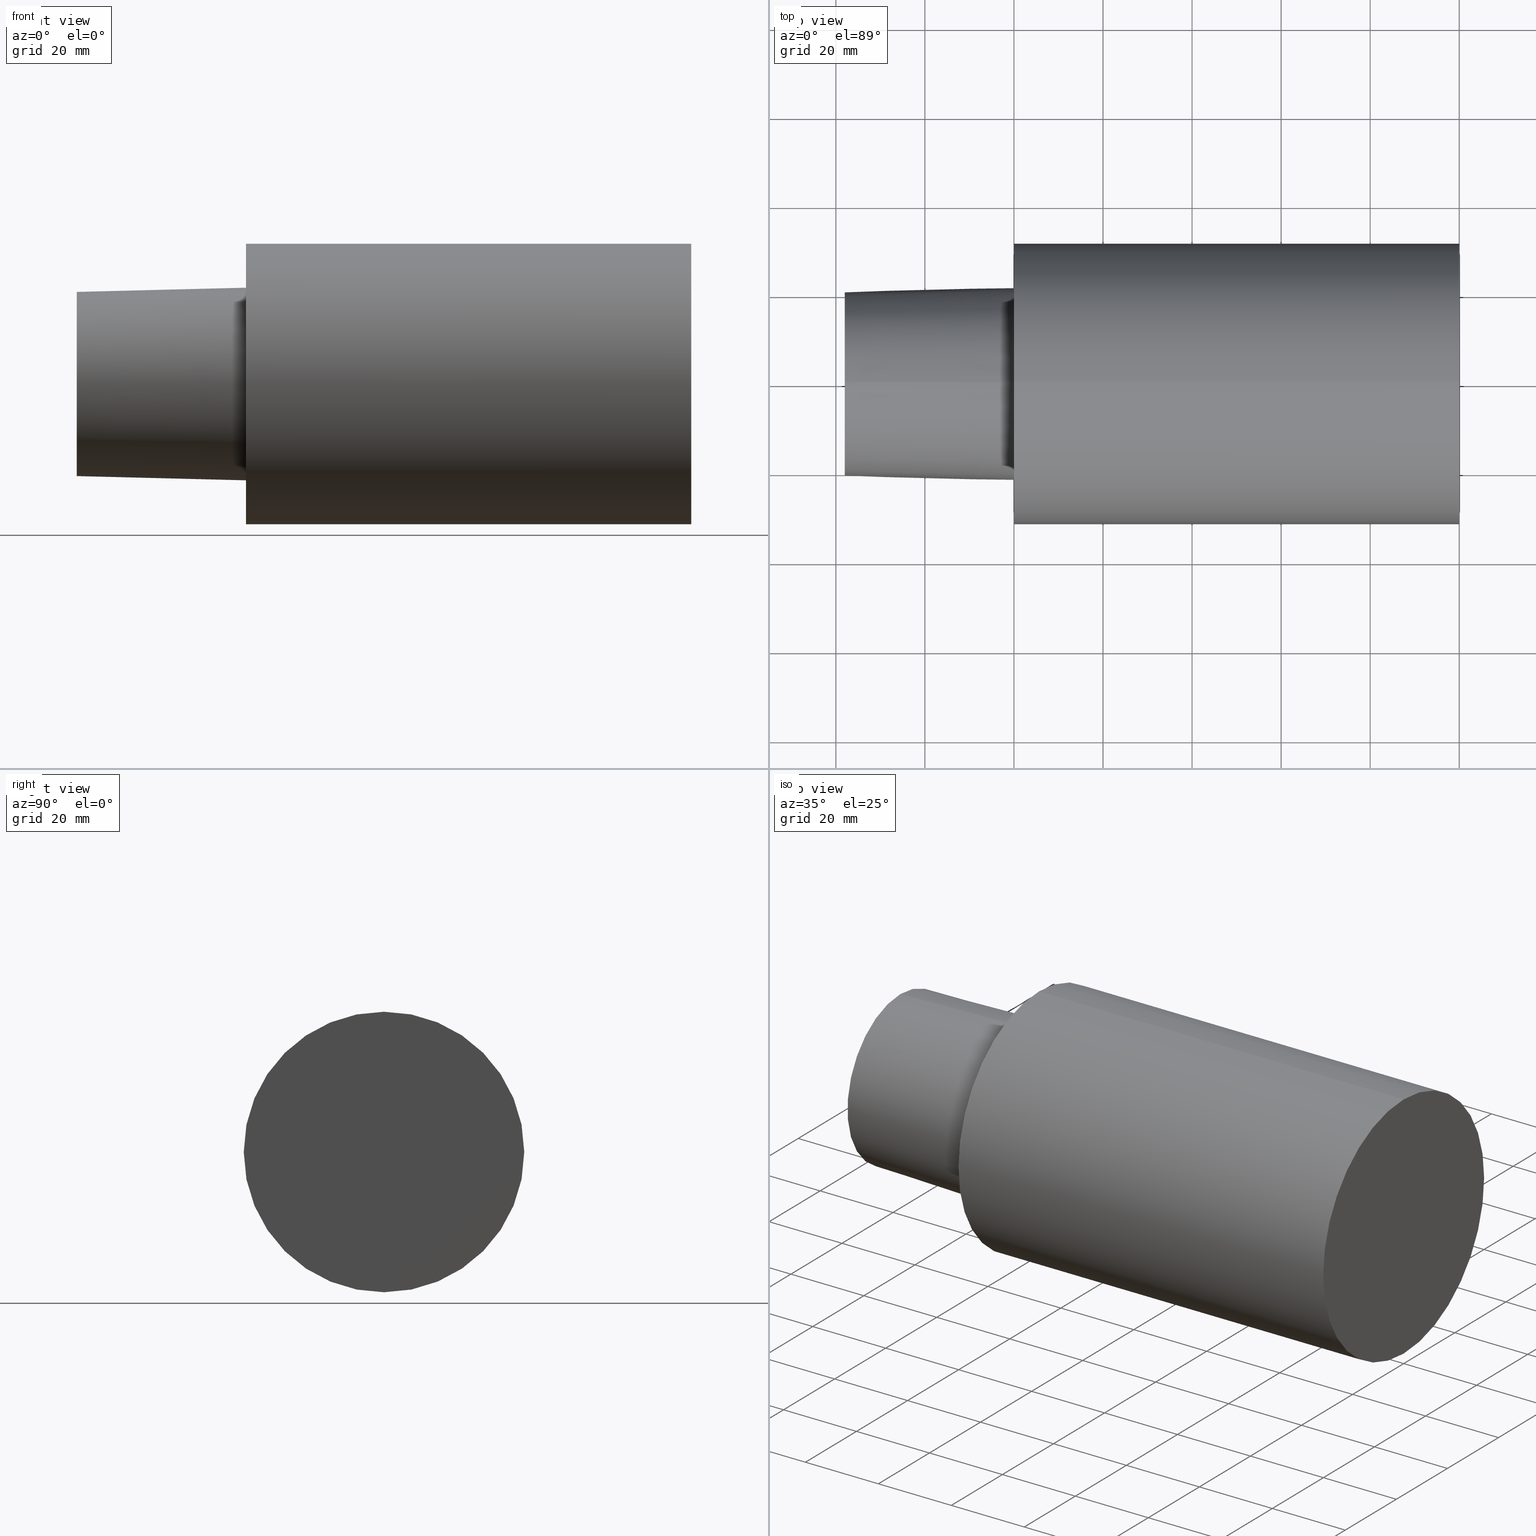
[diagram: canonical four-view strip — front | top / right | iso, engineering-drawing reading convention]
A machine part, canonical four-view strip (front | top / right | iso — engineering-drawing reading convention). The complete STEP part file that produces these views, byte-faithful:
ISO-10303-21;
HEADER;
FILE_DESCRIPTION (( 'STEP AP203' ),
    '1' );
FILE_NAME ('C6-F63-100.stp',
    '2022-03-11T15:31:18',
    ( '' ),
    ( '' ),
    'SwSTEP 2.0',
    'SolidWorks 2021',
    '' );
FILE_SCHEMA (( 'CONFIG_CONTROL_DESIGN' ));
ENDSEC;

DATA;
#1 = ORIENTED_EDGE ( 'NONE', *, *, #124, .F. ) ;
#2 = CC_DESIGN_APPROVAL ( #75, ( #141 ) ) ;
#3 = DIRECTION ( 'NONE',  ( 0.000000000000000000, 0.000000000000000000, 1.000000000000000000 ) ) ;
#4 = CARTESIAN_POINT ( 'NONE',  ( -37.99999996124000035, 0.000000000000000000, 0.000000000000000000 ) ) ;
#5 = CARTESIAN_POINT ( 'NONE',  ( 0.000000000000000000, 0.000000000000000000, 0.000000000000000000 ) ) ;
#6 = AXIS2_PLACEMENT_3D ( 'NONE', #7, #147, #44 ) ;
#7 = CARTESIAN_POINT ( 'NONE',  ( 0.000000000000000000, 31.49999996787000001, 0.000000000000000000 ) ) ;
#8 = CC_DESIGN_DATE_AND_TIME_ASSIGNMENT ( #139, #136, ( #141 ) ) ;
#9 = APPROVAL_DATE_TIME ( #219, #81 ) ;
#10 = PRODUCT_RELATED_PRODUCT_CATEGORY ( 'detail', '', ( #201 ) ) ;
#11 = ORIENTED_EDGE ( 'NONE', *, *, #124, .T. ) ;
#12 = COORDINATED_UNIVERSAL_TIME_OFFSET ( 6, 0, .BEHIND. ) ;
#13 = ORIENTED_EDGE ( 'NONE', *, *, #248, .F. ) ;
#14 = DATE_TIME_ROLE ( 'creation_date' ) ;
#15 = ORIENTED_EDGE ( 'NONE', *, *, #222, .T. ) ;
#16 = CC_DESIGN_PERSON_AND_ORGANIZATION_ASSIGNMENT ( #114, #166, ( #97 ) ) ;
#17 = PERSON_AND_ORGANIZATION ( #206, #48 ) ;
#18 = ORIENTED_EDGE ( 'NONE', *, *, #226, .T. ) ;
#19 = COORDINATED_UNIVERSAL_TIME_OFFSET ( 6, 0, .BEHIND. ) ;
#20 = EDGE_LOOP ( 'NONE', ( #98, #196, #140, #236 ) ) ;
#21 = DIRECTION ( 'NONE',  ( -1.000000000000000000, 0.000000000000000000, 0.000000000000000000 ) ) ;
#22 = CARTESIAN_POINT ( 'NONE',  ( -37.99999996124000035, 20.68052847366897140, 0.000000000000000000 ) ) ;
#23 = APPLICATION_CONTEXT ( 'configuration controlled 3d designs of mechanical parts and assemblies' ) ;
#24 = DIRECTION ( 'NONE',  ( 0.000000000000000000, 0.000000000000000000, 1.000000000000000000 ) ) ;
#25 = AXIS2_PLACEMENT_3D ( 'NONE', #5, #69, #158 ) ;
#26 = CARTESIAN_POINT ( 'NONE',  ( 0.000000000000000000, 2.648985971153096932E-15, 21.63061196907898065 ) ) ;
#27 = DIRECTION ( 'NONE',  ( -1.000000000000000000, 0.000000000000000000, 0.000000000000000000 ) ) ;
#28 = UNCERTAINTY_MEASURE_WITH_UNIT (LENGTH_MEASURE( 1.000000000000000082E-05 ), #230, 'distance_accuracy_value', 'NONE');
#29 = FACE_OUTER_BOUND ( 'NONE', #151, .T. ) ;
#30 = AXIS2_PLACEMENT_3D ( 'NONE', #104, #155, #24 ) ;
#31 = DATE_AND_TIME ( #217, #188 ) ;
#32 = VERTEX_POINT ( 'NONE', #53 ) ;
#33 = APPROVAL_PERSON_ORGANIZATION ( #92, #75, #78 ) ;
#34 = ORIENTED_EDGE ( 'NONE', *, *, #110, .F. ) ;
#35 = ORIENTED_EDGE ( 'NONE', *, *, #66, .F. ) ;
#36 = PERSON_AND_ORGANIZATION_ROLE ( 'creator' ) ;
#37 = VERTEX_POINT ( 'NONE', #134 ) ;
#38 = PERSON_AND_ORGANIZATION ( #206, #48 ) ;
#39 = AXIS2_PLACEMENT_3D ( 'NONE', #22, #105, #199 ) ;
#40 = ORIENTED_EDGE ( 'NONE', *, *, #184, .F. ) ;
#41 = DIRECTION ( 'NONE',  ( -1.000000000000000000, 0.000000000000000000, 0.000000000000000000 ) ) ;
#42 = CARTESIAN_POINT ( 'NONE',  ( 0.000000000000000000, 0.000000000000000000, 0.000000000000000000 ) ) ;
#43 = CARTESIAN_POINT ( 'NONE',  ( -37.99999996124000035, 0.000000000000000000, 0.000000000000000000 ) ) ;
#44 = DIRECTION ( 'NONE',  ( 0.000000000000000000, 1.000000000000000000, 0.000000000000000000 ) ) ;
#45 = DIRECTION ( 'NONE',  ( -1.000000000000000000, 0.000000000000000000, 0.000000000000000000 ) ) ;
#46 = CC_DESIGN_PERSON_AND_ORGANIZATION_ASSIGNMENT ( #238, #99, ( #97 ) ) ;
#47 = DIRECTION ( 'NONE',  ( 1.000000000000000000, 0.000000000000000000, 0.000000000000000000 ) ) ;
#48 = ORGANIZATION ( 'UNSPECIFIED', 'UNSPECIFIED', '' ) ;
#49 = MANIFOLD_SOLID_BREP ( 'Scale1', #215 ) ;
#50 = LOCAL_TIME ( 9, 31, 18.00000000000000000, #133 ) ;
#51 = AXIS2_PLACEMENT_3D ( 'NONE', #100, #212, #189 ) ;
#52 = ORIENTED_EDGE ( 'NONE', *, *, #123, .F. ) ;
#53 = CARTESIAN_POINT ( 'NONE',  ( 99.99999989799999867, 0.000000000000000000, 31.49999996787000001 ) ) ;
#54 = AXIS2_PLACEMENT_3D ( 'NONE', #242, #224, #82 ) ;
#55 = DATE_AND_TIME ( #120, #228 ) ;
#56 = ORIENTED_EDGE ( 'NONE', *, *, #222, .F. ) ;
#57 = CALENDAR_DATE ( 2022, 11, 3 ) ;
#58 = VERTEX_POINT ( 'NONE', #216 ) ;
#59 = APPROVAL_ROLE ( '' ) ;
#60 = CARTESIAN_POINT ( 'NONE',  ( 0.000000000000000000, 0.000000000000000000, -21.63061196907898065 ) ) ;
#61 = CC_DESIGN_PERSON_AND_ORGANIZATION_ASSIGNMENT ( #17, #36, ( #254 ) ) ;
#62 = CARTESIAN_POINT ( 'NONE',  ( 0.000000000000000000, 0.000000000000000000, 0.000000000000000000 ) ) ;
#63 = LINE ( 'NONE', #26, #72 ) ;
#64 = DIRECTION ( 'NONE',  ( -1.000000000000000000, 0.000000000000000000, 0.000000000000000000 ) ) ;
#65 = CARTESIAN_POINT ( 'NONE',  ( 0.000000000000000000, 0.000000000000000000, 0.000000000000000000 ) ) ;
#66 = EDGE_CURVE ( 'NONE', #37, #32, #229, .T. ) ;
#67 = AXIS2_PLACEMENT_3D ( 'NONE', #43, #227, #125 ) ;
#68 = DESIGN_CONTEXT ( 'detailed design', #186, 'design' ) ;
#69 = DIRECTION ( 'NONE',  ( 1.000000000000000000, 0.000000000000000000, 0.000000000000000000 ) ) ;
#70 = LINE ( 'NONE', #241, #164 ) ;
#71 = CONICAL_SURFACE ( 'NONE', #54, 21.63061196907898065, 0.02499698951949481940 ) ;
#72 = VECTOR ( 'NONE', #156, 1000.000000000000114 ) ;
#73 = CIRCLE ( 'NONE', #90, 31.49999996787000001 ) ;
#74 = CYLINDRICAL_SURFACE ( 'NONE', #108, 31.49999996787000001 ) ;
#75 = APPROVAL ( #220, 'UNSPECIFIED' ) ;
#76 = SECURITY_CLASSIFICATION_LEVEL ( 'unclassified' ) ;
#77 = ORIENTED_EDGE ( 'NONE', *, *, #91, .F. ) ;
#78 = APPROVAL_ROLE ( '' ) ;
#79 = VERTEX_POINT ( 'NONE', #167 ) ;
#80 = EDGE_LOOP ( 'NONE', ( #93, #35 ) ) ;
#81 = APPROVAL ( #250, 'UNSPECIFIED' ) ;
#82 = DIRECTION ( 'NONE',  ( 0.000000000000000000, 0.000000000000000000, -1.000000000000000000 ) ) ;
#83 =( NAMED_UNIT ( * ) PLANE_ANGLE_UNIT ( ) SI_UNIT ( $, .RADIAN. ) );
#84 = FACE_OUTER_BOUND ( 'NONE', #80, .T. ) ;
#85 =( NAMED_UNIT ( * ) SI_UNIT ( $, .STERADIAN. ) SOLID_ANGLE_UNIT ( ) );
#86 = ADVANCED_FACE ( 'NONE', ( #251 ), #74, .T. ) ;
#87 = VECTOR ( 'NONE', #64, 1000.000000000000000 ) ;
#88 = DIRECTION ( 'NONE',  ( 0.000000000000000000, 0.000000000000000000, 1.000000000000000000 ) ) ;
#89 = ADVANCED_FACE ( 'NONE', ( #169 ), #240, .T. ) ;
#90 = AXIS2_PLACEMENT_3D ( 'NONE', #203, #27, #122 ) ;
#91 = EDGE_CURVE ( 'NONE', #37, #115, #144, .T. ) ;
#92 = PERSON_AND_ORGANIZATION ( #206, #48 ) ;
#93 = ORIENTED_EDGE ( 'NONE', *, *, #160, .F. ) ;
#94 = PERSON_AND_ORGANIZATION_ROLE ( 'design_owner' ) ;
#95 = DIRECTION ( 'NONE',  ( 0.000000000000000000, 0.000000000000000000, 1.000000000000000000 ) ) ;
#96 = PERSON_AND_ORGANIZATION ( #206, #48 ) ;
#97 = PRODUCT_DEFINITION_FORMATION_WITH_SPECIFIED_SOURCE ( 'ANY', '', #201, .NOT_KNOWN. ) ;
#98 = ORIENTED_EDGE ( 'NONE', *, *, #160, .T. ) ;
#99 = PERSON_AND_ORGANIZATION_ROLE ( 'creator' ) ;
#100 = CARTESIAN_POINT ( 'NONE',  ( 99.99999989799999867, 0.000000000000000000, 0.000000000000000000 ) ) ;
#101 = DIRECTION ( 'NONE',  ( 0.000000000000000000, 0.000000000000000000, 1.000000000000000000 ) ) ;
#102 = CARTESIAN_POINT ( 'NONE',  ( 0.000000000000000000, 0.000000000000000000, -21.63061196907898065 ) ) ;
#103 = CIRCLE ( 'NONE', #194, 31.49999996787000001 ) ;
#104 = CARTESIAN_POINT ( 'NONE',  ( -37.99999996124000035, 0.000000000000000000, 0.000000000000000000 ) ) ;
#105 = DIRECTION ( 'NONE',  ( 1.000000000000000000, 0.000000000000000000, 0.000000000000000000 ) ) ;
#106 = FACE_OUTER_BOUND ( 'NONE', #121, .T. ) ;
#107 = CC_DESIGN_APPROVAL ( #81, ( #254 ) ) ;
#108 = AXIS2_PLACEMENT_3D ( 'NONE', #233, #190, #95 ) ;
#109 = DIRECTION ( 'NONE',  ( 0.000000000000000000, 0.000000000000000000, 1.000000000000000000 ) ) ;
#110 = EDGE_CURVE ( 'NONE', #174, #112, #210, .T. ) ;
#111 = CC_DESIGN_PERSON_AND_ORGANIZATION_ASSIGNMENT ( #150, #193, ( #141 ) ) ;
#112 = VERTEX_POINT ( 'NONE', #145 ) ;
#113 = VERTEX_POINT ( 'NONE', #180 ) ;
#114 = PERSON_AND_ORGANIZATION ( #206, #48 ) ;
#115 = VERTEX_POINT ( 'NONE', #198 ) ;
#116 = APPROVAL_DATE_TIME ( #173, #163 ) ;
#117 = EDGE_LOOP ( 'NONE', ( #11, #132 ) ) ;
#118 = APPROVAL_PERSON_ORGANIZATION ( #195, #81, #59 ) ;
#119 = AXIS2_PLACEMENT_3D ( 'NONE', #246, #45, #109 ) ;
#120 = CALENDAR_DATE ( 2022, 11, 3 ) ;
#121 = EDGE_LOOP ( 'NONE', ( #13, #1, #15, #218 ) ) ;
#122 = DIRECTION ( 'NONE',  ( 0.000000000000000000, 0.000000000000000000, 1.000000000000000000 ) ) ;
#123 = EDGE_CURVE ( 'NONE', #58, #113, #179, .T. ) ;
#124 = EDGE_CURVE ( 'NONE', #113, #58, #221, .T. ) ;
#125 = DIRECTION ( 'NONE',  ( 0.000000000000000000, 0.000000000000000000, 1.000000000000000000 ) ) ;
#126 = DIRECTION ( 'NONE',  ( 0.000000000000000000, 0.000000000000000000, 1.000000000000000000 ) ) ;
#127 = PLANE ( 'NONE',  #39 ) ;
#128 = APPLICATION_PROTOCOL_DEFINITION ( 'international standard', 'config_control_design', 1994, #23 ) ;
#129 = LOCAL_TIME ( 9, 31, 18.00000000000000000, #175 ) ;
#130 = CC_DESIGN_APPROVAL ( #163, ( #97 ) ) ;
#131 = AXIS2_PLACEMENT_3D ( 'NONE', #4, #21, #126 ) ;
#132 = ORIENTED_EDGE ( 'NONE', *, *, #123, .T. ) ;
#133 = COORDINATED_UNIVERSAL_TIME_OFFSET ( 6, 0, .BEHIND. ) ;
#134 = CARTESIAN_POINT ( 'NONE',  ( 99.99999989799999867, 3.857637413379370248E-15, -31.49999996787000001 ) ) ;
#135 = CONICAL_SURFACE ( 'NONE', #25, 21.63061196907898065, 0.02499698951949481940 ) ;
#136 = DATE_TIME_ROLE ( 'classification_date' ) ;
#137 = EDGE_LOOP ( 'NONE', ( #34, #172 ) ) ;
#138 = CALENDAR_DATE ( 2022, 11, 3 ) ;
#139 = DATE_AND_TIME ( #234, #129 ) ;
#140 = ORIENTED_EDGE ( 'NONE', *, *, #226, .F. ) ;
#141 = SECURITY_CLASSIFICATION ( '', '', #76 ) ;
#142 = COORDINATED_UNIVERSAL_TIME_OFFSET ( 6, 0, .BEHIND. ) ;
#143 = CARTESIAN_POINT ( 'NONE',  ( 0.000000000000000000, 0.000000000000000000, 0.000000000000000000 ) ) ;
#144 = LINE ( 'NONE', #176, #87 ) ;
#145 = CARTESIAN_POINT ( 'NONE',  ( 0.000000000000000000, 2.648985971153096932E-15, 21.63061196907898065 ) ) ;
#146 = CC_DESIGN_SECURITY_CLASSIFICATION ( #141, ( #97 ) ) ;
#147 = DIRECTION ( 'NONE',  ( 1.000000000000000000, 0.000000000000000000, 0.000000000000000000 ) ) ;
#148 = DIRECTION ( 'NONE',  ( -1.000000000000000000, 0.000000000000000000, 0.000000000000000000 ) ) ;
#149 = ORIENTED_EDGE ( 'NONE', *, *, #170, .T. ) ;
#150 = PERSON_AND_ORGANIZATION ( #206, #48 ) ;
#151 = EDGE_LOOP ( 'NONE', ( #18, #255 ) ) ;
#152 = APPLICATION_PROTOCOL_DEFINITION ( 'international standard', 'config_control_design', 1994, #186 ) ;
#153 = EDGE_LOOP ( 'NONE', ( #52, #192, #149, #56 ) ) ;
#154 = ORIENTED_EDGE ( 'NONE', *, *, #211, .T. ) ;
#155 = DIRECTION ( 'NONE',  ( -1.000000000000000000, 0.000000000000000000, 0.000000000000000000 ) ) ;
#156 = DIRECTION ( 'NONE',  ( 0.9996875915253454759, 3.060929527057623083E-18, 0.02499438637482059161 ) ) ;
#157 = DIRECTION ( 'NONE',  ( -1.000000000000000000, 0.000000000000000000, 0.000000000000000000 ) ) ;
#158 = DIRECTION ( 'NONE',  ( 0.000000000000000000, 0.000000000000000000, -1.000000000000000000 ) ) ;
#159 = AXIS2_PLACEMENT_3D ( 'NONE', #42, #41, #101 ) ;
#160 = EDGE_CURVE ( 'NONE', #32, #37, #73, .T. ) ;
#161 = DIRECTION ( 'NONE',  ( 0.000000000000000000, 0.000000000000000000, 1.000000000000000000 ) ) ;
#162 = PLANE ( 'NONE',  #6 ) ;
#163 = APPROVAL ( #171, 'UNSPECIFIED' ) ;
#164 = VECTOR ( 'NONE', #148, 1000.000000000000000 ) ;
#165 = ADVANCED_FACE ( 'NONE', ( #239 ), #71, .T. ) ;
#166 = PERSON_AND_ORGANIZATION_ROLE ( 'design_supplier' ) ;
#167 = CARTESIAN_POINT ( 'NONE',  ( 0.000000000000000000, 0.000000000000000000, 31.49999996787000001 ) ) ;
#168 = APPROVAL_ROLE ( '' ) ;
#169 = FACE_OUTER_BOUND ( 'NONE', #253, .T. ) ;
#170 = EDGE_CURVE ( 'NONE', #112, #174, #202, .T. ) ;
#171 = APPROVAL_STATUS ( 'not_yet_approved' ) ;
#172 = ORIENTED_EDGE ( 'NONE', *, *, #170, .F. ) ;
#173 = DATE_AND_TIME ( #57, #231 ) ;
#174 = VERTEX_POINT ( 'NONE', #60 ) ;
#175 = COORDINATED_UNIVERSAL_TIME_OFFSET ( 6, 0, .BEHIND. ) ;
#176 = CARTESIAN_POINT ( 'NONE',  ( -37.99999996124000035, 3.857637413379370248E-15, -31.49999996787000001 ) ) ;
#177 = AXIS2_PLACEMENT_3D ( 'NONE', #204, #245, #88 ) ;
#178 = DIRECTION ( 'NONE',  ( 0.9996875915253454759, 0.000000000000000000, -0.02499438637482059161 ) ) ;
#179 = CIRCLE ( 'NONE', #30, 20.68052847366897140 ) ;
#180 = CARTESIAN_POINT ( 'NONE',  ( -37.99999996124000035, 0.000000000000000000, -20.68052847366897140 ) ) ;
#181 = PLANE ( 'NONE',  #119 ) ;
#182 = FACE_BOUND ( 'NONE', #137, .T. ) ;
#183 = ADVANCED_BREP_SHAPE_REPRESENTATION ( 'C6-F63-100', ( #49, #213 ), #209 ) ;
#184 = EDGE_CURVE ( 'NONE', #115, #79, #103, .T. ) ;
#185 = CC_DESIGN_DATE_AND_TIME_ASSIGNMENT ( #55, #14, ( #254 ) ) ;
#186 = APPLICATION_CONTEXT ( 'configuration controlled 3d designs of mechanical parts and assemblies' ) ;
#187 = ADVANCED_FACE ( 'NONE', ( #84 ), #181, .F. ) ;
#188 = LOCAL_TIME ( 9, 31, 18.00000000000000000, #12 ) ;
#189 = DIRECTION ( 'NONE',  ( 0.000000000000000000, 0.000000000000000000, 1.000000000000000000 ) ) ;
#190 = DIRECTION ( 'NONE',  ( -1.000000000000000000, 0.000000000000000000, 0.000000000000000000 ) ) ;
#191 = ADVANCED_FACE ( 'NONE', ( #182, #29 ), #162, .F. ) ;
#192 = ORIENTED_EDGE ( 'NONE', *, *, #248, .T. ) ;
#193 = PERSON_AND_ORGANIZATION_ROLE ( 'classification_officer' ) ;
#194 = AXIS2_PLACEMENT_3D ( 'NONE', #143, #223, #3 ) ;
#195 = PERSON_AND_ORGANIZATION ( #206, #48 ) ;
#196 = ORIENTED_EDGE ( 'NONE', *, *, #91, .T. ) ;
#197 = ADVANCED_FACE ( 'NONE', ( #106 ), #135, .T. ) ;
#198 = CARTESIAN_POINT ( 'NONE',  ( 0.000000000000000000, 3.857637413379370248E-15, -31.49999996787000001 ) ) ;
#199 = DIRECTION ( 'NONE',  ( 0.000000000000000000, 1.000000000000000000, 0.000000000000000000 ) ) ;
#200 = DIRECTION ( 'NONE',  ( 0.000000000000000000, 0.000000000000000000, 1.000000000000000000 ) ) ;
#201 = PRODUCT ( 'C6-F63-100', 'C6-F63-100', '', ( #207 ) ) ;
#202 = CIRCLE ( 'NONE', #159, 21.63061196907898065 ) ;
#203 = CARTESIAN_POINT ( 'NONE',  ( 99.99999989799999867, 0.000000000000000000, 0.000000000000000000 ) ) ;
#204 = CARTESIAN_POINT ( 'NONE',  ( 0.000000000000000000, 0.000000000000000000, 0.000000000000000000 ) ) ;
#205 = ADVANCED_FACE ( 'NONE', ( #247 ), #127, .F. ) ;
#206 = PERSON ( 'UNSPECIFIED', 'UNSPECIFIED', 'UNSPECIFIED', ('UNSPECIFIED'), ('UNSPECIFIED'), ('UNSPECIFIED') ) ;
#207 = MECHANICAL_CONTEXT ( 'NONE', #23, 'mechanical' ) ;
#208 = CIRCLE ( 'NONE', #177, 31.49999996787000001 ) ;
#209 =( GEOMETRIC_REPRESENTATION_CONTEXT ( 3 ) GLOBAL_UNCERTAINTY_ASSIGNED_CONTEXT ( ( #28 ) ) GLOBAL_UNIT_ASSIGNED_CONTEXT ( ( #230, #83, #85 ) ) REPRESENTATION_CONTEXT ( 'NONE', 'WORKASPACE' ) );
#210 = CIRCLE ( 'NONE', #249, 21.63061196907898065 ) ;
#211 = EDGE_CURVE ( 'NONE', #32, #79, #70, .T. ) ;
#212 = DIRECTION ( 'NONE',  ( -1.000000000000000000, 0.000000000000000000, 0.000000000000000000 ) ) ;
#213 = AXIS2_PLACEMENT_3D ( 'NONE', #65, #161, #47 ) ;
#214 = SHAPE_DEFINITION_REPRESENTATION ( #244, #183 ) ;
#215 = CLOSED_SHELL ( 'NONE', ( #205, #197, #191, #89, #187, #86, #165 ) ) ;
#216 = CARTESIAN_POINT ( 'NONE',  ( -37.99999996124000035, 2.590810135574270981E-15, 20.68052847366897140 ) ) ;
#217 = CALENDAR_DATE ( 2022, 11, 3 ) ;
#218 = ORIENTED_EDGE ( 'NONE', *, *, #110, .T. ) ;
#219 = DATE_AND_TIME ( #138, #50 ) ;
#220 = APPROVAL_STATUS ( 'not_yet_approved' ) ;
#221 = CIRCLE ( 'NONE', #131, 20.68052847366897140 ) ;
#222 = EDGE_CURVE ( 'NONE', #113, #174, #225, .T. ) ;
#223 = DIRECTION ( 'NONE',  ( -1.000000000000000000, 0.000000000000000000, 0.000000000000000000 ) ) ;
#224 = DIRECTION ( 'NONE',  ( 1.000000000000000000, 0.000000000000000000, 0.000000000000000000 ) ) ;
#225 = LINE ( 'NONE', #102, #232 ) ;
#226 = EDGE_CURVE ( 'NONE', #79, #115, #208, .T. ) ;
#227 = DIRECTION ( 'NONE',  ( -1.000000000000000000, 0.000000000000000000, 0.000000000000000000 ) ) ;
#228 = LOCAL_TIME ( 9, 31, 18.00000000000000000, #142 ) ;
#229 = CIRCLE ( 'NONE', #51, 31.49999996787000001 ) ;
#230 =( LENGTH_UNIT ( ) NAMED_UNIT ( * ) SI_UNIT ( .MILLI., .METRE. ) );
#231 = LOCAL_TIME ( 9, 31, 18.00000000000000000, #19 ) ;
#232 = VECTOR ( 'NONE', #178, 1000.000000000000114 ) ;
#233 = CARTESIAN_POINT ( 'NONE',  ( -37.99999996124000035, 0.000000000000000000, 0.000000000000000000 ) ) ;
#234 = CALENDAR_DATE ( 2022, 11, 3 ) ;
#235 = APPROVAL_DATE_TIME ( #31, #75 ) ;
#236 = ORIENTED_EDGE ( 'NONE', *, *, #211, .F. ) ;
#237 = CC_DESIGN_PERSON_AND_ORGANIZATION_ASSIGNMENT ( #38, #94, ( #201 ) ) ;
#238 = PERSON_AND_ORGANIZATION ( #206, #48 ) ;
#239 = FACE_OUTER_BOUND ( 'NONE', #153, .T. ) ;
#240 = CYLINDRICAL_SURFACE ( 'NONE', #67, 31.49999996787000001 ) ;
#241 = CARTESIAN_POINT ( 'NONE',  ( -37.99999996124000035, 0.000000000000000000, 31.49999996787000001 ) ) ;
#242 = CARTESIAN_POINT ( 'NONE',  ( 0.000000000000000000, 0.000000000000000000, 0.000000000000000000 ) ) ;
#243 = APPROVAL_PERSON_ORGANIZATION ( #96, #163, #168 ) ;
#244 = PRODUCT_DEFINITION_SHAPE ( 'NONE', 'NONE',  #254 ) ;
#245 = DIRECTION ( 'NONE',  ( -1.000000000000000000, 0.000000000000000000, 0.000000000000000000 ) ) ;
#246 = CARTESIAN_POINT ( 'NONE',  ( 99.99999989799999867, 0.000000000000000000, 0.000000000000000000 ) ) ;
#247 = FACE_OUTER_BOUND ( 'NONE', #117, .T. ) ;
#248 = EDGE_CURVE ( 'NONE', #58, #112, #63, .T. ) ;
#249 = AXIS2_PLACEMENT_3D ( 'NONE', #62, #157, #200 ) ;
#250 = APPROVAL_STATUS ( 'not_yet_approved' ) ;
#251 = FACE_OUTER_BOUND ( 'NONE', #20, .T. ) ;
#252 = ORIENTED_EDGE ( 'NONE', *, *, #66, .T. ) ;
#253 = EDGE_LOOP ( 'NONE', ( #77, #252, #154, #40 ) ) ;
#254 = PRODUCT_DEFINITION ( 'UNKNOWN', '', #97, #68 ) ;
#255 = ORIENTED_EDGE ( 'NONE', *, *, #184, .T. ) ;
ENDSEC;
END-ISO-10303-21;
